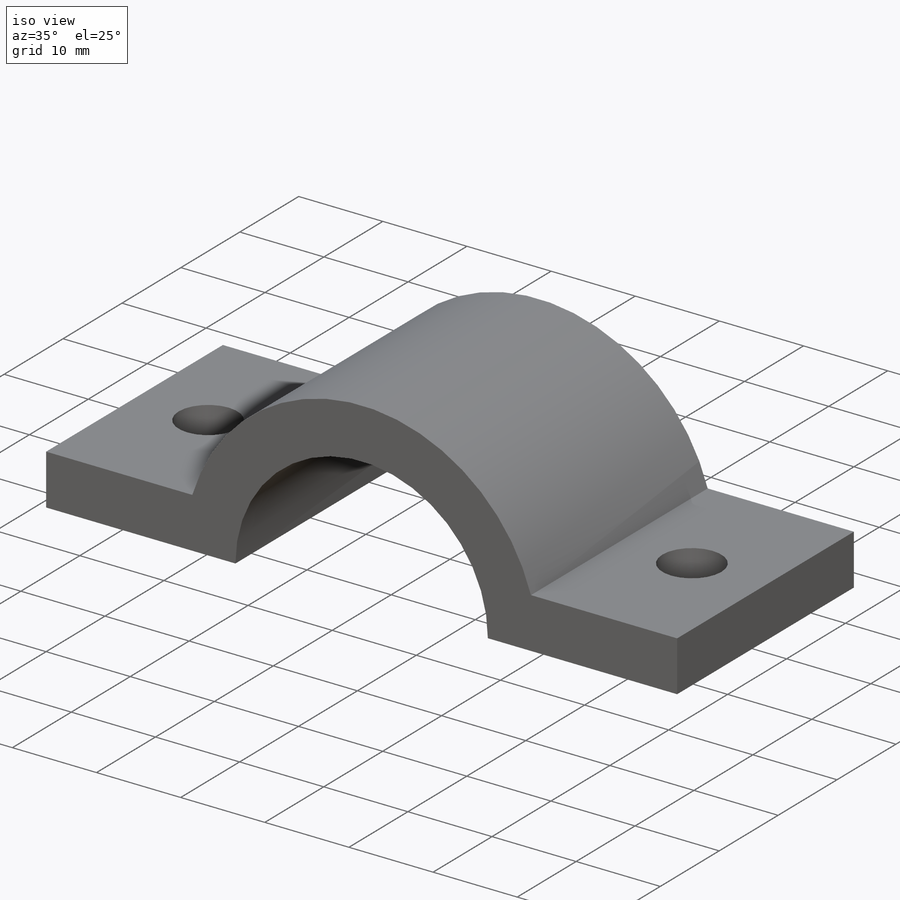
[diagram: iso view]
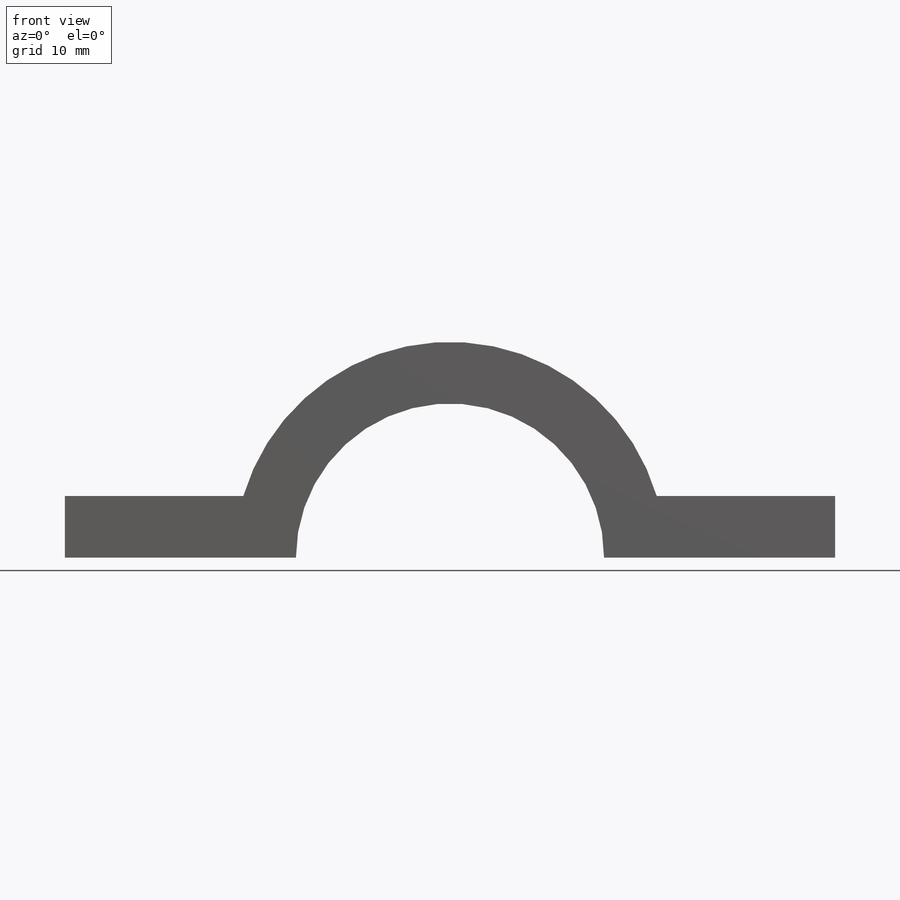
[diagram: front view]
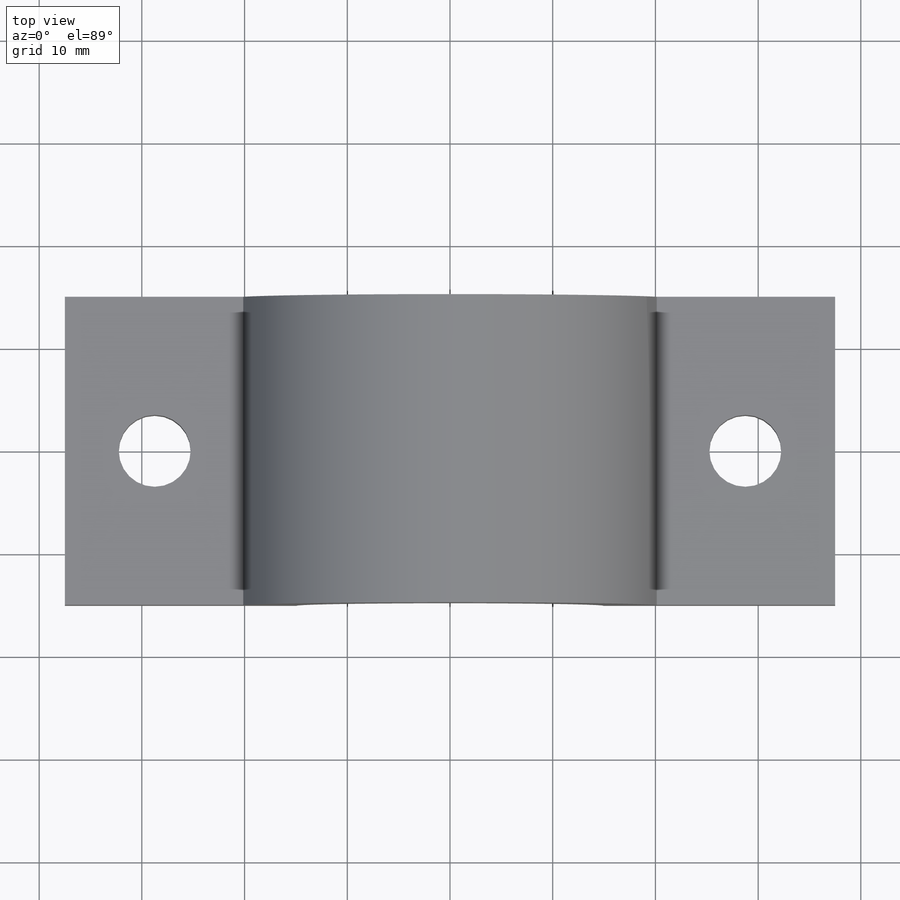
[diagram: top view]
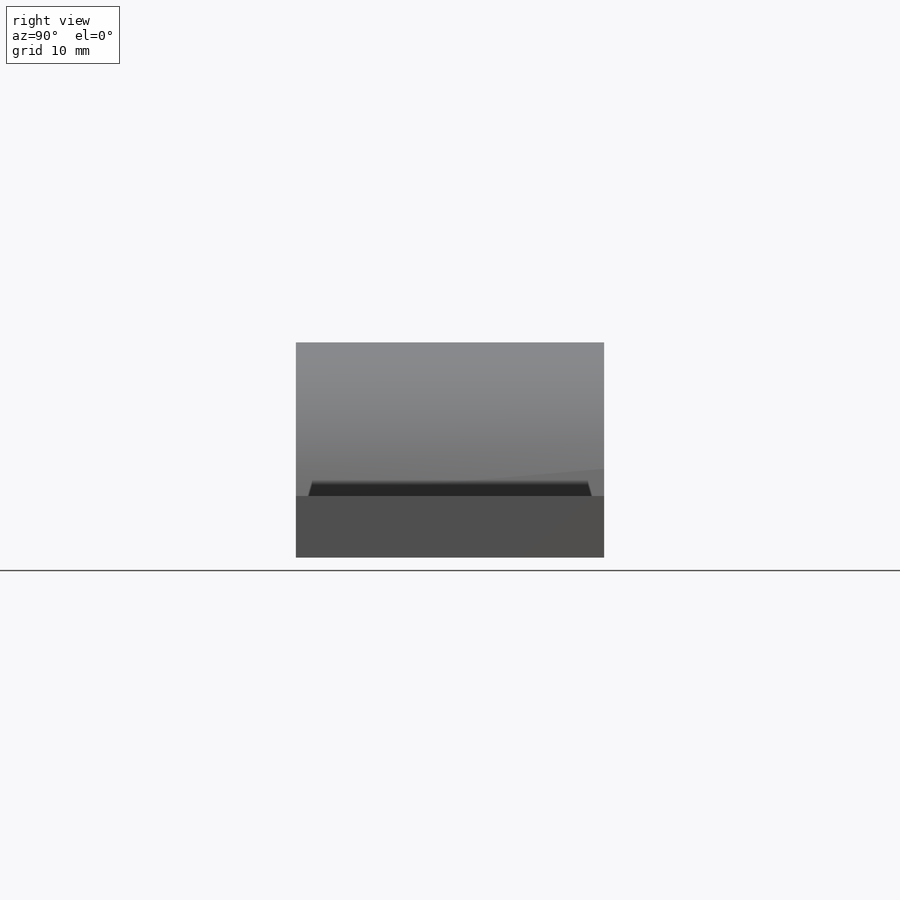
[diagram: right view]
SOLIDWORKS PART (.sldprt)
format: sldprt  version: not decoded by parser v0  size: 205,824 bytes
history: native  units: mm
features: plane x3, sketch x3, material x1, extrude x1, hole x1 (+9 scaffold rows collapsed)
feature tree (18):
  scaffold x9  (default folders/planes/origin — collapsed)
  material  "AISI 1020"
  plane  "Plano frontal"
  plane  "Plano superior"
  plane  "Plano direito"
  sketch  "Esboço1"  dims[D2=21.0mm D3=15.0mm D1=6.0mm D4=75.0mm D5=~17.375388mm]
  extrude  "Ressalto-extrusão1"  Depth=30mm
  hole  "Furo de diâmetro Ø7.0 (7)1"  Diameter=7mm Depth=6mm
  sketch  "Esboço3"  dims[D1=57.5mm]
  sketch  "Esboço2"  dims[hole-wizard template sketch: 59 standard entries collapsed; hole parameters kept: c18.Thru Hole Dia.=7.0mm c18.Thru Hole Depth=6.0mm]
decode coverage: 5 of 5 modeling features carry decoded parameters
note: ~ marks probable driven/reference dimensions
note: suppression state not decoded; provenance and decode notes live in map.json
